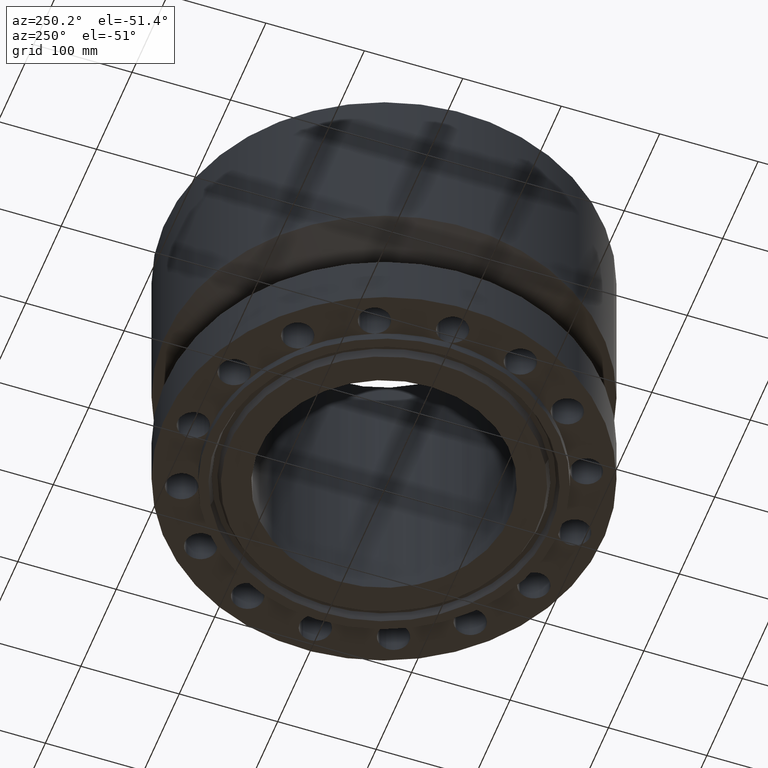
[diagram: clean part render]
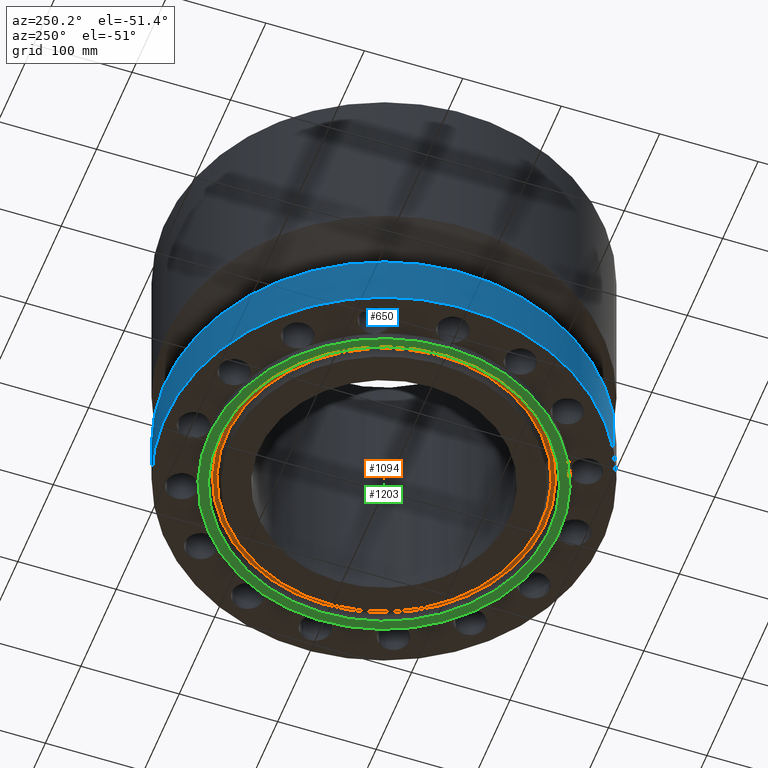
[diagram: same view with three faces highlighted in distinct colors, each labeled with its STEP entity id]
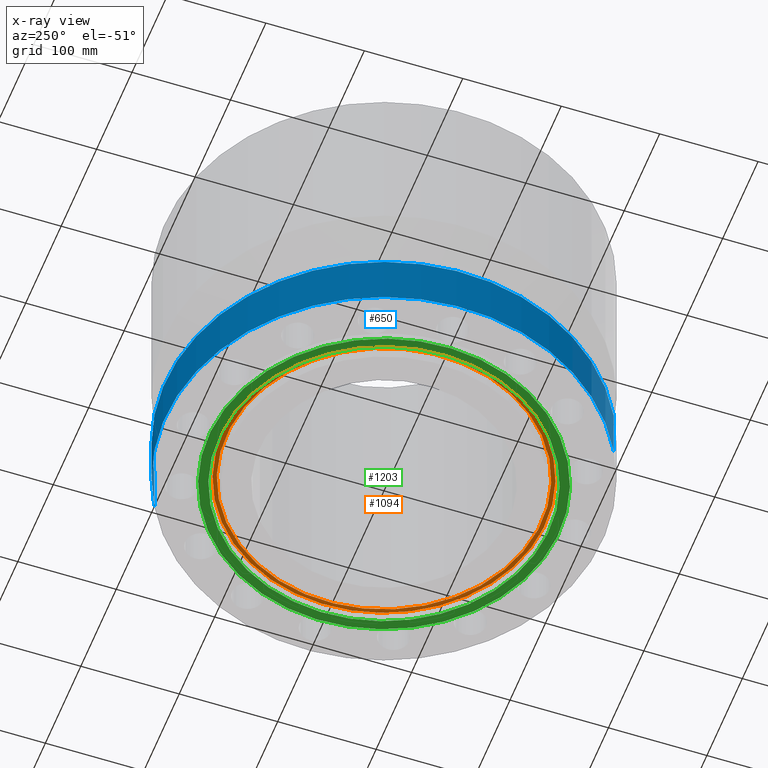
[diagram: x-ray of the same camera — body ghosted, the three highlighted faces saturated]
A machine part, auxiliary view with three faces highlighted in distinct colors.
The next image is the same camera in x-ray (body ghosted, the three faces saturated) — at least one of them is partly hidden behind the body in this view.
Their STEP definitions:

[orange] entity #1094 — the highlighted planar face has unit normal (0, 0, -1).
#78=AXIS2_PLACEMENT_3D('Plane Axis2P3D',#75,#76,#77) ;
#1043=AXIS2_PLACEMENT_3D('Circle Axis2P3D',#1041,#1042,$) ;
#1062=AXIS2_PLACEMENT_3D('Circle Axis2P3D',#1060,#1061,$) ;
#1074=AXIS2_PLACEMENT_3D('Circle Axis2P3D',#1072,#1073,$) ;
#1083=AXIS2_PLACEMENT_3D('Circle Axis2P3D',#1081,#1082,$) ;
#75=CARTESIAN_POINT('Axis2P3D Location',(0.,6.2938790699,0.)) ;
#1038=CARTESIAN_POINT('Vertex',(-3.01744636299,-5.52339851839,0.)) ;
#1041=CARTESIAN_POINT('Axis2P3D Location',(0.,0.,0.)) ;
#1045=CARTESIAN_POINT('Vertex',(3.01744636299,5.52339851839,0.)) ;
#1060=CARTESIAN_POINT('Axis2P3D Location',(0.,0.,0.)) ;
#1072=CARTESIAN_POINT('Axis2P3D Location',(0.,0.,0.)) ;
#1076=CARTESIAN_POINT('Vertex',(-3.09522925423,-5.66577914576,1.57354444435E-016)) ;
#1078=CARTESIAN_POINT('Vertex',(3.09522925423,5.66577914576,1.57354444435E-016)) ;
#1081=CARTESIAN_POINT('Axis2P3D Location',(0.,0.,0.)) ;
#76=DIRECTION('Axis2P3D Direction',(0.,0.,-0.0393700787402)) ;
#77=DIRECTION('Axis2P3D XDirection',(0.0393700787402,0.,0.)) ;
#1042=DIRECTION('Axis2P3D Direction',(0.,0.,-0.0393700787402)) ;
#1061=DIRECTION('Axis2P3D Direction',(0.,0.,-0.0393700787402)) ;
#1073=DIRECTION('Axis2P3D Direction',(0.,0.,-0.0393700787402)) ;
#1082=DIRECTION('Axis2P3D Direction',(0.,0.,-0.0393700787402)) ;
#1087=ORIENTED_EDGE('',*,*,#1080,.T.) ;
#1088=ORIENTED_EDGE('',*,*,#1085,.T.) ;
#1091=ORIENTED_EDGE('',*,*,#1064,.F.) ;
#1092=ORIENTED_EDGE('',*,*,#1047,.F.) ;
#1093=FACE_BOUND('',#1090,.T.) ;
#1094=ADVANCED_FACE('PartBody',(#1089,#1093),#79,.T.) ;
#1044=CIRCLE('generated circle',#1043,6.2938790699) ;
#1063=CIRCLE('generated circle',#1062,6.2938790699) ;
#1075=CIRCLE('generated circle',#1074,6.45612093016) ;
#1084=CIRCLE('generated circle',#1083,6.45612093016) ;
#1047=EDGE_CURVE('',#1039,#1046,#1044,.T.) ;
#1064=EDGE_CURVE('',#1046,#1039,#1063,.T.) ;
#1080=EDGE_CURVE('',#1077,#1079,#1075,.T.) ;
#1085=EDGE_CURVE('',#1079,#1077,#1084,.T.) ;
#1086=EDGE_LOOP('',(#1087,#1088)) ;
#1090=EDGE_LOOP('',(#1091,#1092)) ;
#1089=FACE_OUTER_BOUND('',#1086,.T.) ;
#79=PLANE('',#78) ;
#1039=VERTEX_POINT('',#1038) ;
#1046=VERTEX_POINT('',#1045) ;
#1077=VERTEX_POINT('',#1076) ;
#1079=VERTEX_POINT('',#1078) ;

[blue] entity #650 — the highlighted cylindrical surface (partial cylindrical patch) has radius 222.25 mm, axis along (0, 0, -1).
#82=AXIS2_PLACEMENT_3D('Circle Axis2P3D',#80,#81,$) ;
#623=AXIS2_PLACEMENT_3D('Cylinder Axis2P3D',#620,#621,#622) ;
#634=AXIS2_PLACEMENT_3D('Circle Axis2P3D',#632,#633,$) ;
#80=CARTESIAN_POINT('Axis2P3D Location',(0.,0.,0.)) ;
#84=CARTESIAN_POINT('Vertex',(-4.1949734628,-7.67884741657,1.1189649382E-015)) ;
#86=CARTESIAN_POINT('Vertex',(4.1949734628,7.67884741657,1.1189649382E-015)) ;
#620=CARTESIAN_POINT('Axis2P3D Location',(0.,0.,5.71850000002)) ;
#625=CARTESIAN_POINT('Line Origine',(-4.1949734628,-7.67884741657,8.32936732844)) ;
#629=CARTESIAN_POINT('Vertex',(-4.1949734628,-7.67884741657,2.12000000001)) ;
#632=CARTESIAN_POINT('Axis2P3D Location',(0.,0.,2.12000000001)) ;
#636=CARTESIAN_POINT('Vertex',(4.1949734628,7.67884741657,2.12000000001)) ;
#639=CARTESIAN_POINT('Line Origine',(4.1949734628,7.67884741657,8.32936732844)) ;
#81=DIRECTION('Axis2P3D Direction',(0.,0.,-0.0393700787402)) ;
#621=DIRECTION('Axis2P3D Direction',(0.,0.,-0.0393700787402)) ;
#622=DIRECTION('Axis2P3D XDirection',(-0.0188750212049,-0.0345504945626,0.)) ;
#626=DIRECTION('Vector Direction',(0.,0.,-0.0393700787402)) ;
#633=DIRECTION('Axis2P3D Direction',(0.,0.,-0.0393700787402)) ;
#640=DIRECTION('Vector Direction',(0.,0.,-0.0393700787402)) ;
#627=VECTOR('Line Direction',#626,0.0393700787402) ;
#641=VECTOR('Line Direction',#640,0.0393700787402) ;
#645=ORIENTED_EDGE('',*,*,#88,.F.) ;
#646=ORIENTED_EDGE('',*,*,#631,.T.) ;
#647=ORIENTED_EDGE('',*,*,#638,.T.) ;
#648=ORIENTED_EDGE('',*,*,#643,.F.) ;
#650=ADVANCED_FACE('PartBody',(#649),#624,.T.) ;
#83=CIRCLE('generated circle',#82,8.75000000003) ;
#635=CIRCLE('generated circle',#634,8.75000000003) ;
#624=CYLINDRICAL_SURFACE('generated cylinder',#623,8.75000000003) ;
#88=EDGE_CURVE('',#85,#87,#83,.T.) ;
#631=EDGE_CURVE('',#85,#630,#628,.F.) ;
#638=EDGE_CURVE('',#630,#637,#635,.T.) ;
#643=EDGE_CURVE('',#87,#637,#642,.F.) ;
#644=EDGE_LOOP('',(#645,#646,#647,#648)) ;
#649=FACE_OUTER_BOUND('',#644,.T.) ;
#628=LINE('Line',#625,#627) ;
#642=LINE('Line',#639,#641) ;
#85=VERTEX_POINT('',#84) ;
#87=VERTEX_POINT('',#86) ;
#630=VERTEX_POINT('',#629) ;
#637=VERTEX_POINT('',#636) ;

[green] entity #1203 — the highlighted planar face has unit normal (0, 0, -1).
#961=AXIS2_PLACEMENT_3D('Plane Axis2P3D',#958,#959,#960) ;
#1152=AXIS2_PLACEMENT_3D('Circle Axis2P3D',#1150,#1151,$) ;
#1171=AXIS2_PLACEMENT_3D('Circle Axis2P3D',#1169,#1170,$) ;
#1183=AXIS2_PLACEMENT_3D('Circle Axis2P3D',#1181,#1182,$) ;
#1192=AXIS2_PLACEMENT_3D('Circle Axis2P3D',#1190,#1191,$) ;
#958=CARTESIAN_POINT('Axis2P3D Location',(0.,5.00000000002,-0.313000000001)) ;
#1147=CARTESIAN_POINT('Vertex',(-3.16876309742,-5.80038194284,-0.313000000001)) ;
#1150=CARTESIAN_POINT('Axis2P3D Location',(0.,0.,-0.313000000001)) ;
#1154=CARTESIAN_POINT('Vertex',(3.16876309742,5.80038194284,-0.313000000001)) ;
#1169=CARTESIAN_POINT('Axis2P3D Location',(0.,0.,-0.313000000001)) ;
#1181=CARTESIAN_POINT('Axis2P3D Location',(0.,0.,-0.313000000001)) ;
#1185=CARTESIAN_POINT('Vertex',(-3.35597877024,-6.14307793326,-0.313000000001)) ;
#1187=CARTESIAN_POINT('Vertex',(3.35597877024,6.14307793326,-0.313000000001)) ;
#1190=CARTESIAN_POINT('Axis2P3D Location',(0.,0.,-0.313000000001)) ;
#959=DIRECTION('Axis2P3D Direction',(0.,0.,-0.0393700787402)) ;
#960=DIRECTION('Axis2P3D XDirection',(0.0393700787402,0.,0.)) ;
#1151=DIRECTION('Axis2P3D Direction',(0.,0.,-0.0393700787402)) ;
#1170=DIRECTION('Axis2P3D Direction',(0.,0.,-0.0393700787402)) ;
#1182=DIRECTION('Axis2P3D Direction',(0.,0.,-0.0393700787402)) ;
#1191=DIRECTION('Axis2P3D Direction',(0.,0.,-0.0393700787402)) ;
#1196=ORIENTED_EDGE('',*,*,#1189,.T.) ;
#1197=ORIENTED_EDGE('',*,*,#1194,.T.) ;
#1200=ORIENTED_EDGE('',*,*,#1173,.F.) ;
#1201=ORIENTED_EDGE('',*,*,#1156,.F.) ;
#1202=FACE_BOUND('',#1199,.T.) ;
#1203=ADVANCED_FACE('PartBody',(#1198,#1202),#962,.T.) ;
#1153=CIRCLE('generated circle',#1152,6.60950000003) ;
#1172=CIRCLE('generated circle',#1171,6.60950000003) ;
#1184=CIRCLE('generated circle',#1183,7.00000000003) ;
#1193=CIRCLE('generated circle',#1192,7.00000000003) ;
#1156=EDGE_CURVE('',#1148,#1155,#1153,.T.) ;
#1173=EDGE_CURVE('',#1155,#1148,#1172,.T.) ;
#1189=EDGE_CURVE('',#1186,#1188,#1184,.T.) ;
#1194=EDGE_CURVE('',#1188,#1186,#1193,.T.) ;
#1195=EDGE_LOOP('',(#1196,#1197)) ;
#1199=EDGE_LOOP('',(#1200,#1201)) ;
#1198=FACE_OUTER_BOUND('',#1195,.T.) ;
#962=PLANE('',#961) ;
#1148=VERTEX_POINT('',#1147) ;
#1155=VERTEX_POINT('',#1154) ;
#1186=VERTEX_POINT('',#1185) ;
#1188=VERTEX_POINT('',#1187) ;